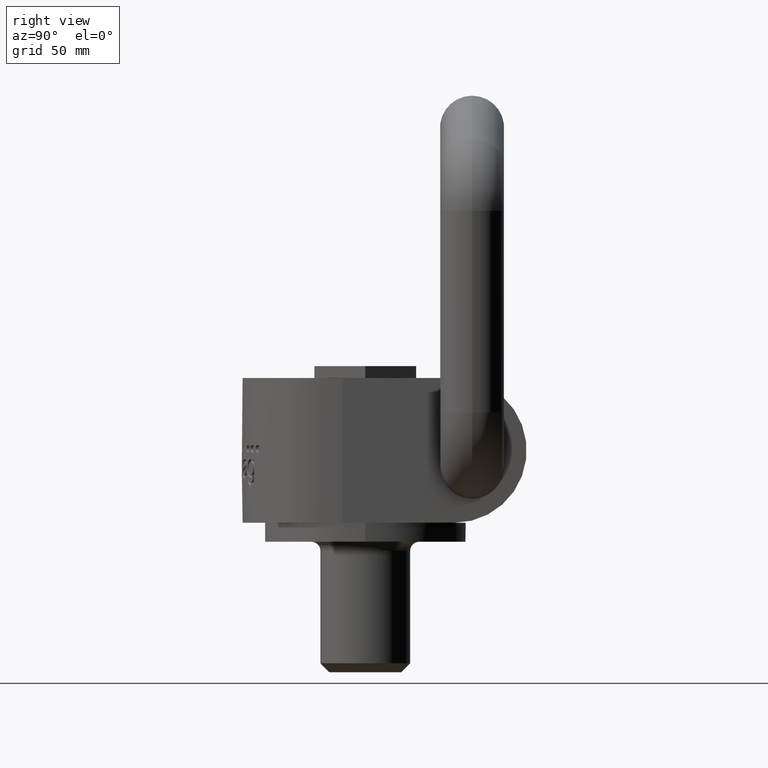
[diagram: clean part render]
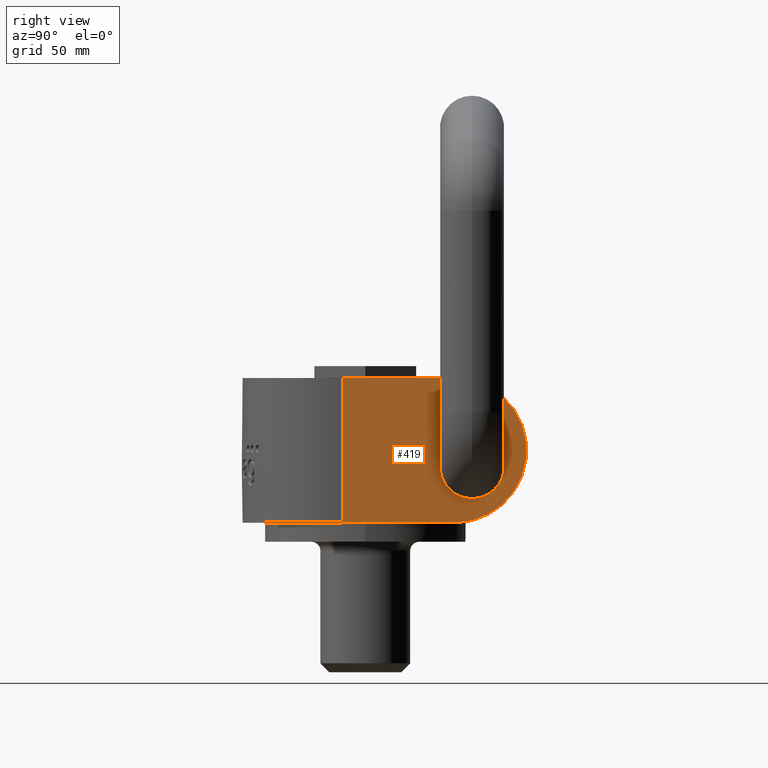
[diagram: same view with one face highlighted and labeled with its STEP entity id]
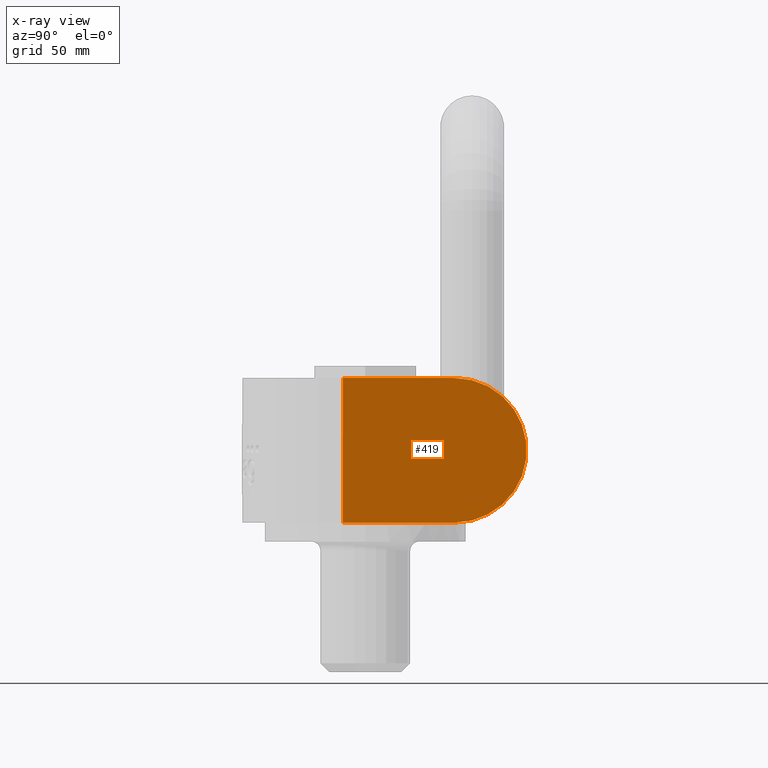
[diagram: x-ray of the same camera — body ghosted, the highlighted face saturated]
A machine part, right view. The second image highlights one B-rep face of the part: STEP entity #419.
The next image is the same camera in x-ray: the body ghosted, the highlighted face saturated — about 0% of this face is hidden behind the body in this view.
In plain terms, the highlighted planar face has unit normal (1, 0, 0).
Its self-contained STEP definition (entity closure, byte-faithful):
#248=PLANE('',#2504);
#310=FACE_OUTER_BOUND('',#648,.T.);
#419=ADVANCED_FACE('',(#310),#248,.T.);
#648=EDGE_LOOP('',(#1235,#1236,#1237,#1238,#1239));
#801=LINE('',#3636,#931);
#805=LINE('',#3769,#935);
#808=LINE('',#3776,#938);
#809=LINE('',#3778,#939);
#931=VECTOR('',#2665,1.);
#935=VECTOR('',#2679,1.);
#938=VECTOR('',#2686,1.);
#939=VECTOR('',#2689,1.);
#1124=CIRCLE('',#2502,30.5);
#1235=ORIENTED_EDGE('',*,*,#2058,.T.);
#1236=ORIENTED_EDGE('',*,*,#2044,.T.);
#1237=ORIENTED_EDGE('',*,*,#2053,.T.);
#1238=ORIENTED_EDGE('',*,*,#2057,.T.);
#1239=ORIENTED_EDGE('',*,*,#2063,.T.);
#1830=VERTEX_POINT('',#3634);
#1832=VERTEX_POINT('',#3637);
#1839=VERTEX_POINT('',#3768);
#1841=VERTEX_POINT('',#3775);
#1842=VERTEX_POINT('',#3779);
#2044=EDGE_CURVE('',#1832,#1830,#801,.T.);
#2053=EDGE_CURVE('',#1830,#1839,#805,.T.);
#2057=EDGE_CURVE('',#1839,#1841,#808,.T.);
#2058=EDGE_CURVE('',#1842,#1832,#809,.T.);
#2063=EDGE_CURVE('',#1841,#1842,#1124,.T.);
#2502=AXIS2_PLACEMENT_3D('',#3787,#2698,#2699);
#2504=AXIS2_PLACEMENT_3D('',#3790,#2703,#2704);
#2665=DIRECTION('',(0.,-4.55009436321785E-16,-1.));
#2679=DIRECTION('',(0.,1.,1.33944098086855E-16));
#2686=DIRECTION('',(0.,1.,1.33944098086855E-16));
#2689=DIRECTION('',(0.,-1.,1.55059081651558E-16));
#2698=DIRECTION('',(1.,0.,0.));
#2699=DIRECTION('',(0.,1.,-1.13752359080446E-16));
#2703=DIRECTION('',(1.,0.,0.));
#2704=DIRECTION('',(0.,0.,-1.));
#3634=CARTESIAN_POINT('',(42.5,-9.50000000000002,1.65323738320582E-15));
#3636=CARTESIAN_POINT('',(42.5,-9.50000000000002,-2.77555756156289E-14));
#3637=CARTESIAN_POINT('',(42.5,-9.49999999999999,61.));
#3768=CARTESIAN_POINT('',(42.5,0.,6.69539461904587E-14));
#3769=CARTESIAN_POINT('',(42.5,-52.,-4.0393867854855E-15));
#3775=CARTESIAN_POINT('',(42.5,37.5,7.94860999328799E-15));
#3776=CARTESIAN_POINT('',(42.5,-52.,-4.0393867854855E-15));
#3778=CARTESIAN_POINT('',(42.5,37.5,61.));
#3779=CARTESIAN_POINT('',(42.5,37.5,61.));
#3787=CARTESIAN_POINT('',(42.5,37.5,30.5));
#3790=CARTESIAN_POINT('',(42.5,37.5,30.5));